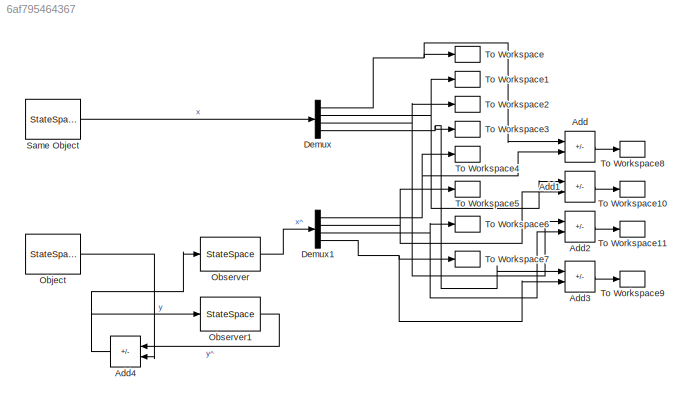
MODEL slx_6af795464367
KIND model
CONFIG AbsTol = auto
CONFIG EnableMultiTasking = off
CONFIG FixedStep = 0.0001
CONFIG MaxStep = auto
CONFIG MinStep = auto
CONFIG RelTol = 1e-3
CONFIG SampleTimeConstraint = Unconstrained
CONFIG SolverName = FixedStepAuto
CONFIG StartTime = 0.0
CONFIG StopTime = 3
BLOCK [Sum] Add
  IconShape = rectangular
  Inputs = +-
  Ports = [2, 1]
BLOCK [Sum] Add1
  IconShape = rectangular
  Inputs = +-
  Ports = [2, 1]
BLOCK [Sum] Add2
  IconShape = rectangular
  Inputs = +-
  Ports = [2, 1]
BLOCK [Sum] Add3
  IconShape = rectangular
  Inputs = +-
  Ports = [2, 1]
BLOCK [Sum] Add4
  IconShape = rectangular
  Inputs = +-
  NameLocation = top
  Ports = [2, 1]
BLOCK [Demux] Demux
  Ports = [1, 4]
BLOCK [Demux] Demux1
  NameLocation = left
  Ports = [1, 4]
BLOCK [StateSpace] Object
  A = A
  B = B
  C = C
  D = 0
  InitialCondition = x0
  Ports = [1, 1]
BLOCK [StateSpace] Observer
  A = A
  B = L
  C = [1,0,0,0; 0,1,0,0; 0,0,1,0; 0,0,0,1]
  D = [0;0;0;0]
  InitialCondition = x_0
  ParameterTunability = Unconstrained
  Ports = [1, 1]
BLOCK [StateSpace] Observer1
  A = A
  B = L
  C = C
  D = 0
  InitialCondition = x_0
  ParameterTunability = Unconstrained
  Ports = [1, 1]
BLOCK [StateSpace] Same Object
  A = A
  B = B
  C = [1,0,0,0; 0,1,0,0; 0,0,1,0; 0,0,0,1]
  D = [0; 0; 0; 0]
  InitialCondition = x0
  ParameterTunability = Unconstrained
  Ports = [1, 1]
BLOCK [ToWorkspace] To Workspace
  FixptAsFi = on
  MaxDataPoints = inf
  Ports = [1]
  SampleTime = -1
  SaveFormat = Timeseries
  VariableName = x1
BLOCK [ToWorkspace] To Workspace1
  FixptAsFi = on
  MaxDataPoints = inf
  Ports = [1]
  SampleTime = -1
  SaveFormat = Timeseries
  VariableName = x2
BLOCK [ToWorkspace] To Workspace10
  FixptAsFi = on
  MaxDataPoints = inf
  Ports = [1]
  SampleTime = -1
  SaveFormat = Timeseries
  VariableName = e2
BLOCK [ToWorkspace] To Workspace11
  FixptAsFi = on
  MaxDataPoints = inf
  Ports = [1]
  SampleTime = -1
  SaveFormat = Timeseries
  VariableName = e3
BLOCK [ToWorkspace] To Workspace2
  FixptAsFi = on
  MaxDataPoints = inf
  Ports = [1]
  SampleTime = -1
  SaveFormat = Timeseries
  VariableName = x3
BLOCK [ToWorkspace] To Workspace3
  FixptAsFi = on
  MaxDataPoints = inf
  Ports = [1]
  SampleTime = -1
  SaveFormat = Timeseries
  VariableName = x4
BLOCK [ToWorkspace] To Workspace4
  FixptAsFi = on
  MaxDataPoints = inf
  Ports = [1]
  SampleTime = -1
  SaveFormat = Timeseries
  VariableName = x_1
BLOCK [ToWorkspace] To Workspace5
  FixptAsFi = on
  MaxDataPoints = inf
  Ports = [1]
  SampleTime = -1
  SaveFormat = Timeseries
  VariableName = x_2
BLOCK [ToWorkspace] To Workspace6
  FixptAsFi = on
  MaxDataPoints = inf
  Ports = [1]
  SampleTime = -1
  SaveFormat = Timeseries
  VariableName = x_3
BLOCK [ToWorkspace] To Workspace7
  FixptAsFi = on
  MaxDataPoints = inf
  Ports = [1]
  SampleTime = -1
  SaveFormat = Timeseries
  VariableName = x_4
BLOCK [ToWorkspace] To Workspace8
  FixptAsFi = on
  MaxDataPoints = inf
  Ports = [1]
  SampleTime = -1
  SaveFormat = Timeseries
  VariableName = e1
BLOCK [ToWorkspace] To Workspace9
  FixptAsFi = on
  MaxDataPoints = inf
  Ports = [1]
  SampleTime = -1
  SaveFormat = Timeseries
  VariableName = e4
LINE Add1:1 -> To Workspace10:1
LINE Add2:1 -> To Workspace11:1
LINE Add3:1 -> To Workspace9:1
NET Add4:1 -> Observer1:1, Observer:1
LINE Add:1 -> To Workspace8:1
NET Demux1:1 -> Add:2, To Workspace4:1
NET Demux1:2 -> Add1:2, To Workspace5:1
NET Demux1:3 -> Add2:2, To Workspace6:1
NET Demux1:4 -> Add3:2, To Workspace7:1
NET Demux:1 -> Add:1, To Workspace:1
NET Demux:2 -> Add1:1, To Workspace1:1
NET Demux:3 -> Add2:1, To Workspace2:1
NET Demux:4 -> Add3:1, To Workspace3:1
LINE Object:1 -> Add4:2
LINE Observer1:1 -> Add4:1
LINE Observer:1 -> Demux1:1
LINE Same Object:1 -> Demux:1
note: NET lines group one-source signal fan-out (src -> all destinations, sorted); 1:1 wires keep LINE
